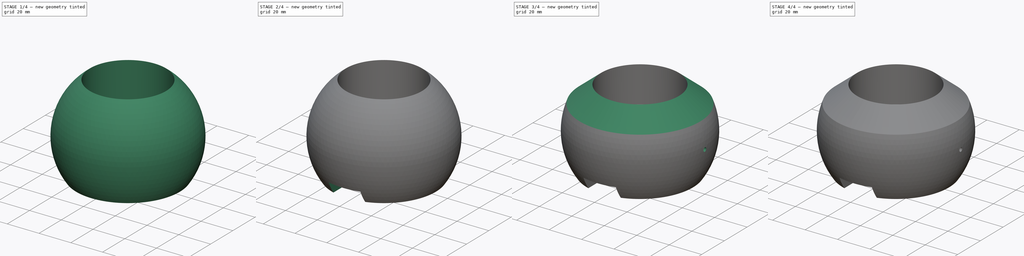
[diagram: build sequence overview — one tinted view per stage of 4, left to right]
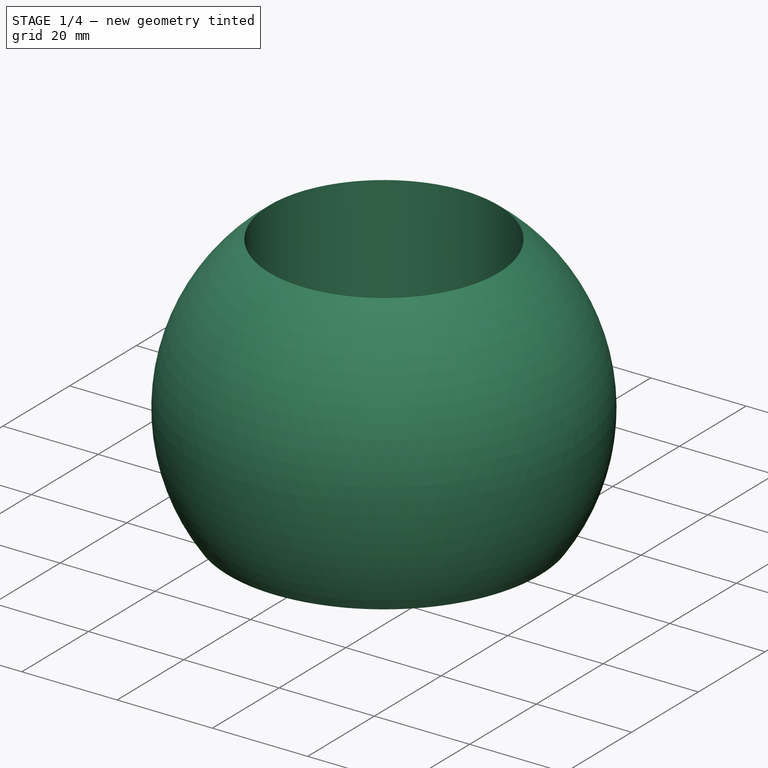
[diagram: stage 1 of 4 — iso view after this stage's code; geometry added in this stage tinted green]
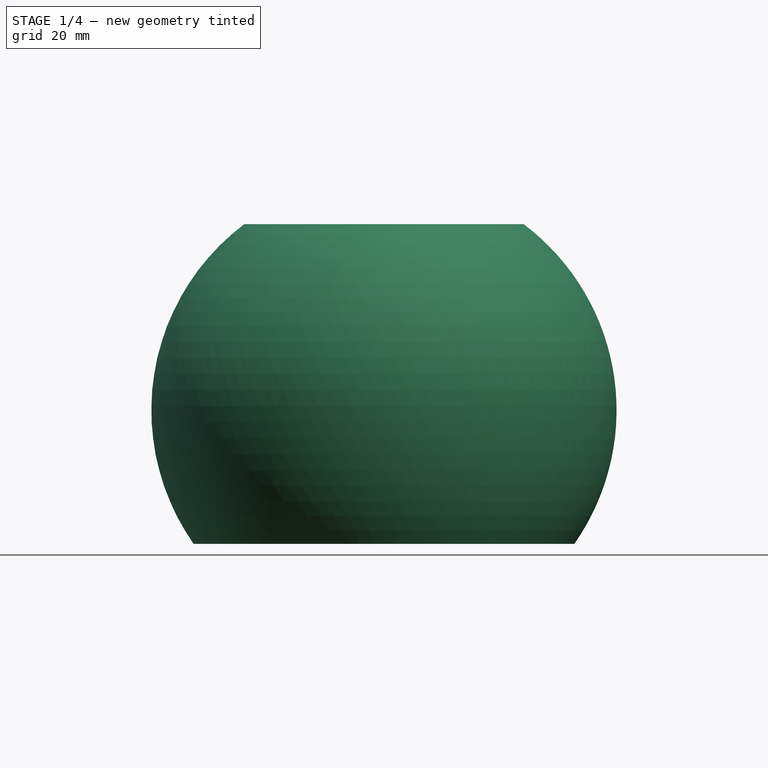
[diagram: stage 1 of 4 — front view after this stage's code; geometry added in this stage tinted green]
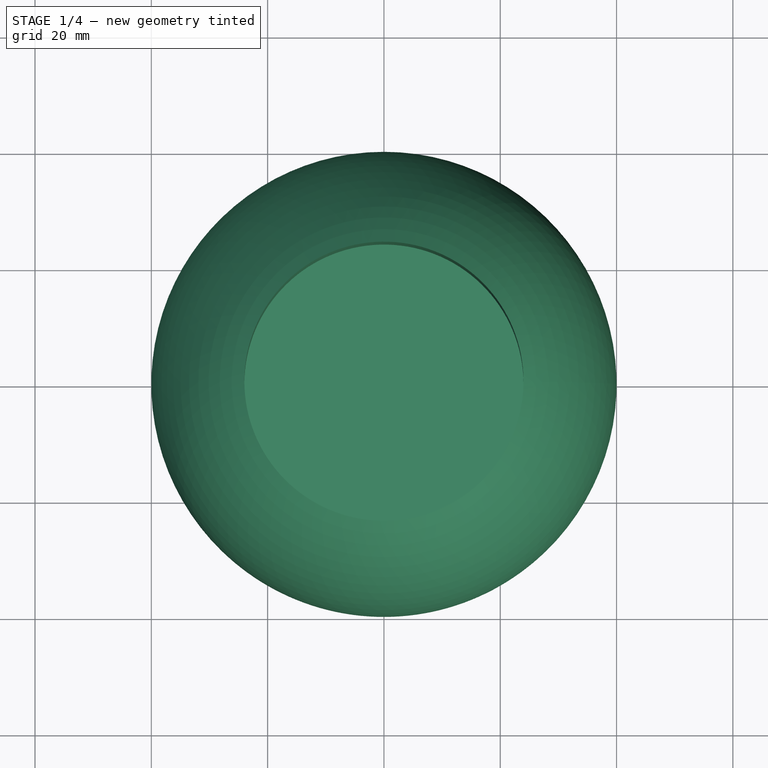
[diagram: stage 1 of 4 — top view after this stage's code; geometry added in this stage tinted green]
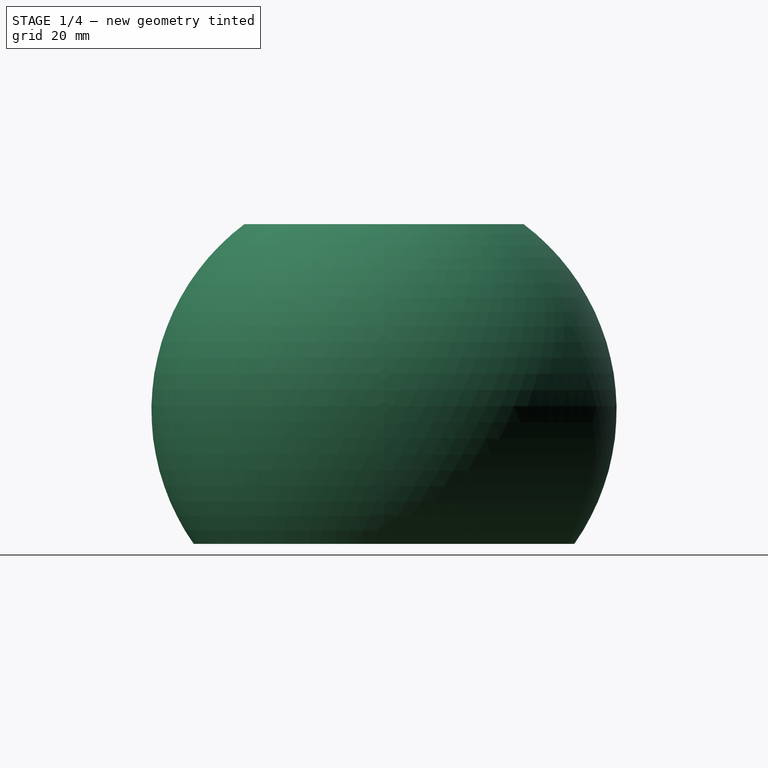
[diagram: stage 1 of 4 — right view after this stage's code; geometry added in this stage tinted green]
FCSTD DOCUMENT  (FreeCAD 1.0R39319 (Git))
Label: IMX296-MPI_Eyeball_2p8mm
License: All rights reserved
LicenseURL: https://en.wikipedia.org/wiki/All_rights_reserved
objects: Sketcher::SketchObject×11, PartDesign::Pocket×9, PartDesign::Revolution×1, PartDesign::Groove×1, PartDesign::PolarPattern×1, PartDesign::Mirrored×1, PartDesign::Body×1, App::Part×1
note: 60 computed .brp shape members not serialized (recipe doc carries the construction recipe); baked Part::Feature solids carry a one-line shape summary decoded from their .brp

FEATURE [Sketcher::SketchObject] Sketch
  ArcFitTolerance = 1e-06
  AttachmentSupport = -> [XZ_Plane001]
  FullyConstrained = true
  MakeInternals = false
  MapMode = 5
  Placement = pos=(0,0,0) rot=(1,0,0;1.5708rad)
  sketch-geometry (4):
    g0: LineSegment StartX=0 StartY=-23 StartZ=0 EndX=0 EndY=34 EndZ=0
    g1: LineSegment StartX=0 StartY=34 StartZ=0 EndX=21.0713 EndY=34 EndZ=0
    g2: ArcOfCircle CenterX=0 CenterY=0 CenterZ=0 NormalX=0 NormalY=0 NormalZ=1 AngleXU=0 Radius=40 StartAngle=5.67058 EndAngle=7.29917
    g3: LineSegment StartX=32.7261 StartY=-23 StartZ=0 EndX=0 EndY=-23 EndZ=0
  constraints (12):
    c: PointOnObject(g0,g-2)
    c: Vertical(g0)
    c: Coincident(g0,g1)
    c: Horizontal(g1)
    c: Coincident(g2,g3)
    c: Coincident(g3,g0)
    c: Horizontal(g3)
    c: Distance(g-1,g3) = 23
    c: Distance(g1,g-1) = 34
    c: Coincident(g1,g2)
    c: Coincident(g2,g-1)
    c: Radius(g2) = 40
FEATURE [PartDesign::Revolution] Revolution
  Angle = 360
  Angle2 = 60
  Axis = (0,2e-16,1)
  Base = (0,0,0)
  Placement = pos=(0,0,0) rot=(1,0,0;1.5708rad)
  Profile = -> Sketch
  ReferenceAxis = -> Sketch [V_Axis]
  Refine = true
  Reversed = true
  Suppressed = false
  Type = 0
FEATURE [Sketcher::SketchObject] Sketch001
  ArcFitTolerance = 1e-06
  AttachmentSupport = -> [Revolution]
  FullyConstrained = true
  MakeInternals = false
  MapMode = 5
  Placement = pos=(0,-1.01e-14,-23) rot=(1,0,0;3.14159rad)
  sketch-geometry (4):
    g0: LineSegment StartX=-20.5 StartY=20.5 StartZ=0 EndX=-20.5 EndY=-20.5 EndZ=0
    g1: LineSegment StartX=-20.5 StartY=-20.5 StartZ=0 EndX=20.5 EndY=-20.5 EndZ=0
    g2: LineSegment StartX=20.5 StartY=-20.5 StartZ=0 EndX=20.5 EndY=20.5 EndZ=0
    g3: LineSegment StartX=20.5 StartY=20.5 StartZ=0 EndX=-20.5 EndY=20.5 EndZ=0
  constraints (10):
    c: Coincident(g0,g1)
    c: Coincident(g1,g2)
    c: Coincident(g2,g3)
    c: Coincident(g3,g0)
    c: Vertical(g2)
    c: Horizontal(g1)
    c: Distance(g0,g0) = 41
    c: Distance(g2,g0) = 41
    c: Symmetric(g0,g0,g-1)
    c: Symmetric(g0,g2,g-2)
FEATURE [PartDesign::Pocket] Pocket
  BaseFeature = -> Revolution
  Direction = (0,0,1)
  Length = 0
  Length2 = 5
  Offset = -5.5
  Placement = pos=(0,0,0) rot=(1,0,0;1.5708rad)
  Profile = -> Sketch001
  ReferenceAxis = -> Sketch001 [N_Axis]
  Refine = true
  Suppressed = false
  Type = 3
  UpToFace = -> XY_Plane001
FEATURE [Sketcher::SketchObject] Sketch002
  ArcFitTolerance = 1e-06
  AttachmentSupport = -> [Pocket]
  FullyConstrained = true
  MakeInternals = false
  MapMode = 5
  Placement = pos=(0,1.5e-14,34) rot=(0,0,1;3.14159rad)
  sketch-geometry (1):
    g0: Circle CenterX=0 CenterY=0 CenterZ=0 NormalX=0 NormalY=0 NormalZ=1 AngleXU=0 Radius=24
  constraints (2):
    c: Coincident(g0,g-1)
    c: Diameter(g0) = 48
FEATURE [PartDesign::Pocket] Pocket001
  BaseFeature = -> Pocket
  Direction = (0,0,-1)
  Length = 0
  Length2 = 5
  Offset = -3.3
  Placement = pos=(0,0,0) rot=(1,0,0;1.5708rad)
  Profile = -> Sketch002
  ReferenceAxis = -> Sketch002 [N_Axis]
  Refine = true
  Suppressed = false
  Type = 3
  UpToFace = -> XY_Plane001
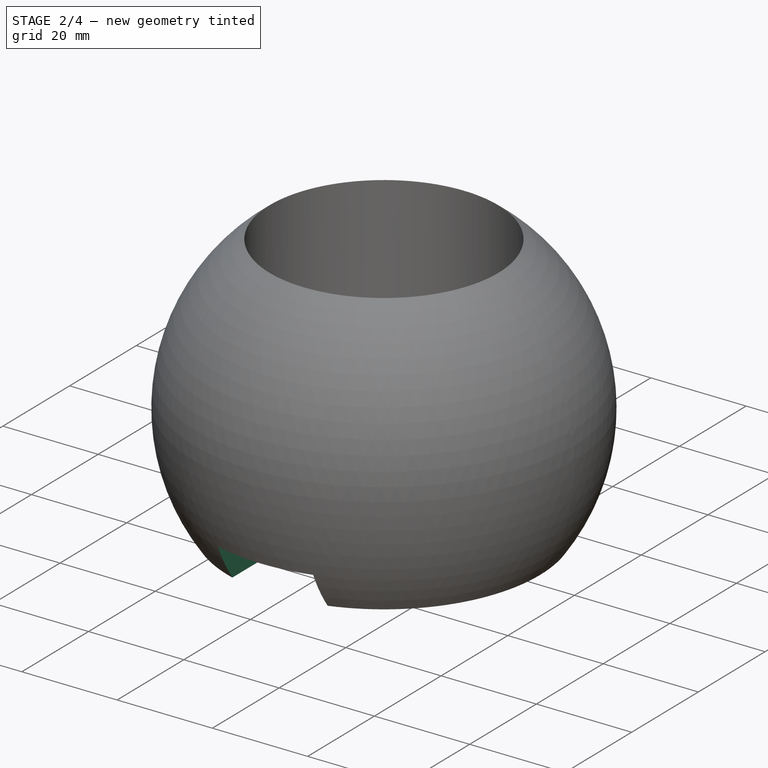
[diagram: stage 2 of 4 — iso view after this stage's code; geometry added in this stage tinted green]
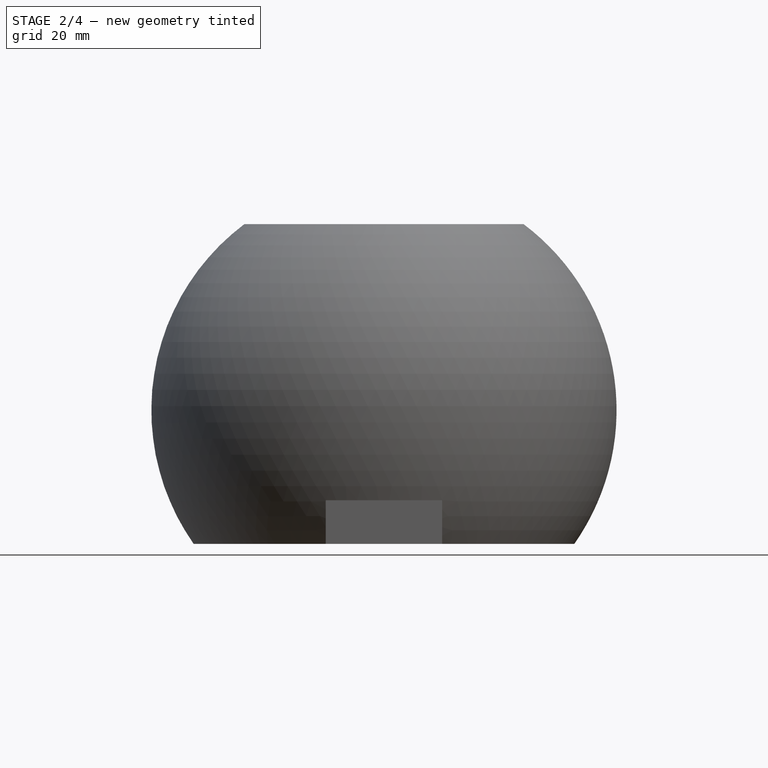
[diagram: stage 2 of 4 — front view after this stage's code; geometry added in this stage tinted green]
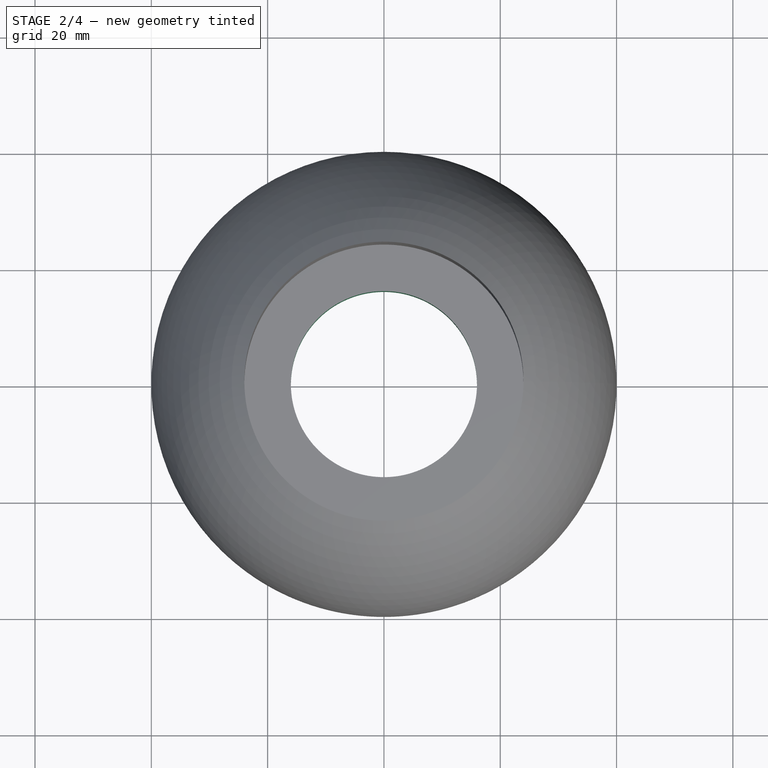
[diagram: stage 2 of 4 — top view after this stage's code; geometry added in this stage tinted green]
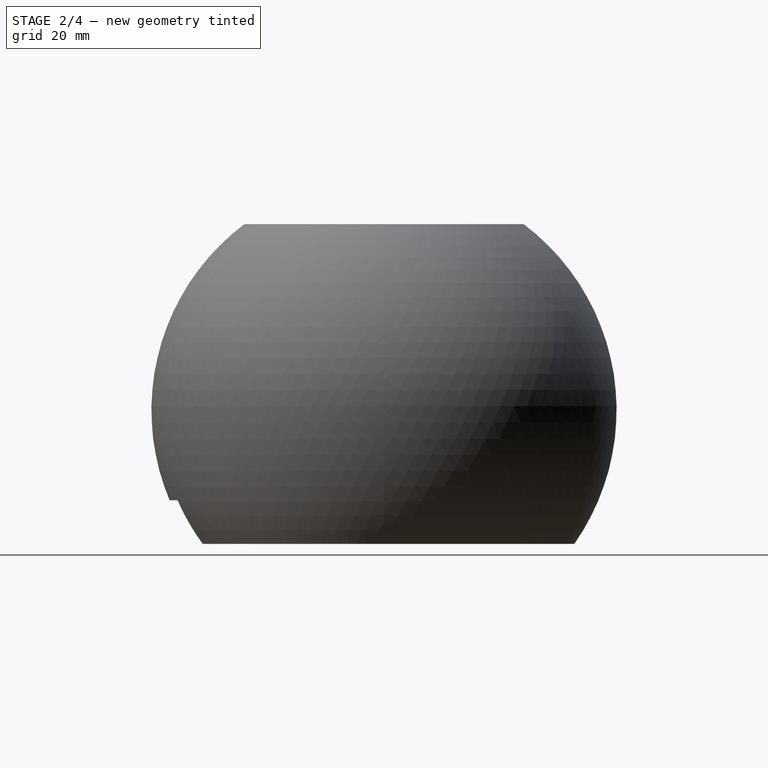
[diagram: stage 2 of 4 — right view after this stage's code; geometry added in this stage tinted green]
FEATURE [Sketcher::SketchObject] Sketch003
  ArcFitTolerance = 1e-06
  AttachmentSupport = -> [Pocket001]
  FullyConstrained = true
  MakeInternals = false
  MapMode = 5
  Placement = pos=(0,-1.01e-14,-23) rot=(1,0,0;3.14159rad)
  sketch-geometry (1):
    g0: Circle CenterX=0 CenterY=0 CenterZ=0 NormalX=0 NormalY=0 NormalZ=1 AngleXU=0 Radius=16
  constraints (2):
    c: Coincident(g0,g-1)
    c: Diameter(g0) = 32
FEATURE [PartDesign::Pocket] Pocket002
  BaseFeature = -> Pocket001
  Direction = (0,0,1)
  Length = 5
  Length2 = 5
  Placement = pos=(0,0,0) rot=(1,0,0;1.5708rad)
  Profile = -> Sketch003
  ReferenceAxis = -> Sketch003 [N_Axis]
  Refine = true
  Suppressed = false
  Type = 1
FEATURE [Sketcher::SketchObject] Sketch004
  ArcFitTolerance = 1e-06
  AttachmentSupport = -> [Pocket002]
  ExternalGeometry = -> [Pocket002]
  FullyConstrained = true
  MakeInternals = false
  MapMode = 5
  Placement = pos=(0,-1.01e-14,-23) rot=(1,0,0;3.14159rad)
  sketch-geometry (4):
    g0: LineSegment StartX=-10 StartY=35.5 StartZ=0 EndX=-10 EndY=20.5 EndZ=0
    g1: LineSegment StartX=-10 StartY=20.5 StartZ=0 EndX=10 EndY=20.5 EndZ=0
    g2: LineSegment StartX=10 StartY=20.5 StartZ=0 EndX=10 EndY=35.5 EndZ=0
    g3: LineSegment StartX=10 StartY=35.5 StartZ=0 EndX=-10 EndY=35.5 EndZ=0
  constraints (11):
    c: Coincident(g0,g1)
    c: Coincident(g1,g2)
    c: Coincident(g2,g3)
    c: Coincident(g3,g0)
    c: Vertical(g0)
    c: Vertical(g2)
    c: Horizontal(g1)
    c: Distance(g2,g0) = 20
    c: Distance(g1,g3) = 15
    c: PointOnObject(g0,g-3)
    c: Symmetric(g0,g2,g-2)
FEATURE [PartDesign::Pocket] Pocket003
  BaseFeature = -> Pocket002
  Direction = (0,0,1)
  Length = 0
  Length2 = 5
  Placement = pos=(0,0,0) rot=(1,0,0;1.5708rad)
  Profile = -> Sketch004
  ReferenceAxis = -> Sketch004 [N_Axis]
  Refine = true
  Suppressed = false
  Type = 3
  UpToFace = -> Pocket002 [Face10]
FEATURE [Sketcher::SketchObject] Sketch005
  ArcFitTolerance = 1e-06
  AttachmentSupport = -> [Pocket003]
  ExternalGeometry = -> [Pocket003]
  FullyConstrained = true
  MakeInternals = false
  MapMode = 5
  Placement = pos=(0,-35.5,0) rot=(-1,0,0;1.5708rad)
  sketch-geometry (4):
    g0: LineSegment StartX=-10 StartY=15.4839 StartZ=0 EndX=10 EndY=15.4839 EndZ=0
    g1: LineSegment StartX=10 StartY=15.4839 StartZ=0 EndX=10 EndY=18.4323 EndZ=0
    g2: LineSegment StartX=10 StartY=18.4323 StartZ=0 EndX=-10 EndY=18.4323 EndZ=0
    g3: LineSegment StartX=-10 StartY=18.4323 StartZ=0 EndX=-10 EndY=15.4839 EndZ=0
  constraints (10):
    c: Coincident(g0,g1)
    c: Coincident(g1,g2)
    c: Coincident(g2,g3)
    c: Coincident(g3,g0)
    c: Horizontal(g2)
    c: Vertical(g1)
    c: Vertical(g3)
    c: Coincident(g0,g-5)
    c: Coincident(g0,g-5)
    c: Tangent(g-5,g2)
FEATURE [PartDesign::Pocket] Pocket004
  BaseFeature = -> Pocket003
  Direction = (0,-1,-2e-16)
  Length = 5
  Length2 = 5
  Placement = pos=(0,0,0) rot=(1,0,0;1.5708rad)
  Profile = -> Sketch005
  ReferenceAxis = -> Sketch005 [N_Axis]
  Refine = true
  Suppressed = false
  Type = 1
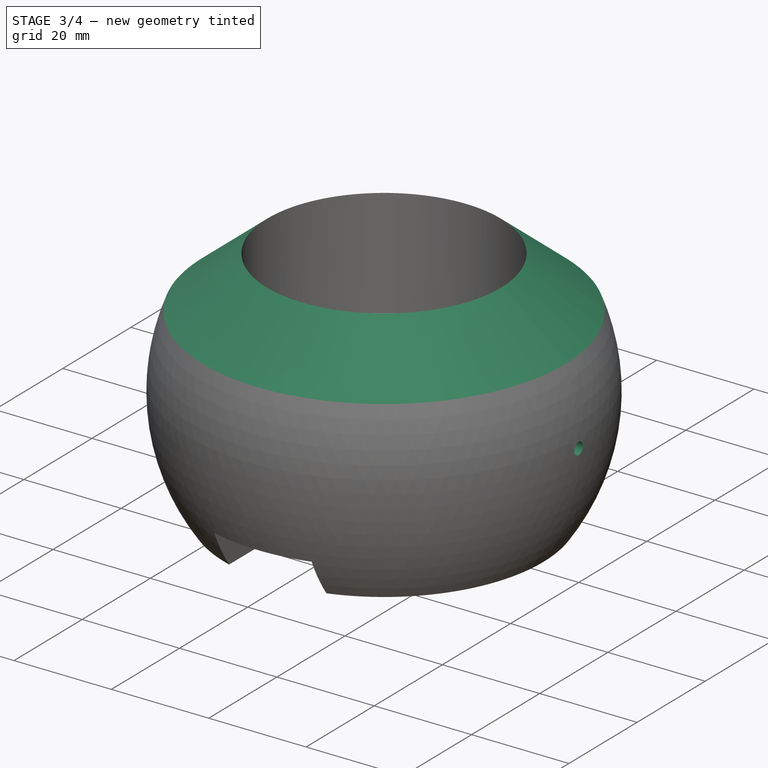
[diagram: stage 3 of 4 — iso view after this stage's code; geometry added in this stage tinted green]
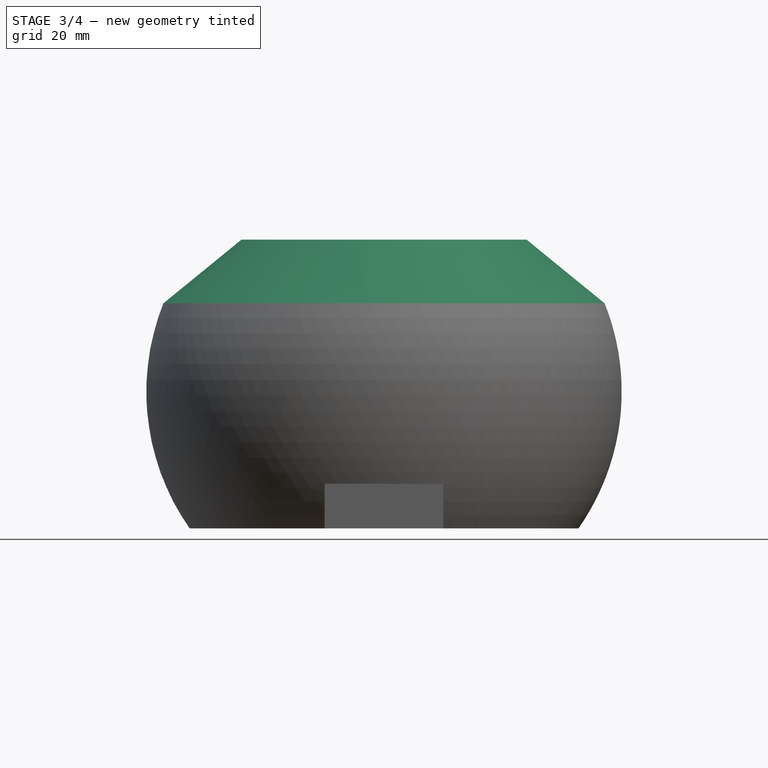
[diagram: stage 3 of 4 — front view after this stage's code; geometry added in this stage tinted green]
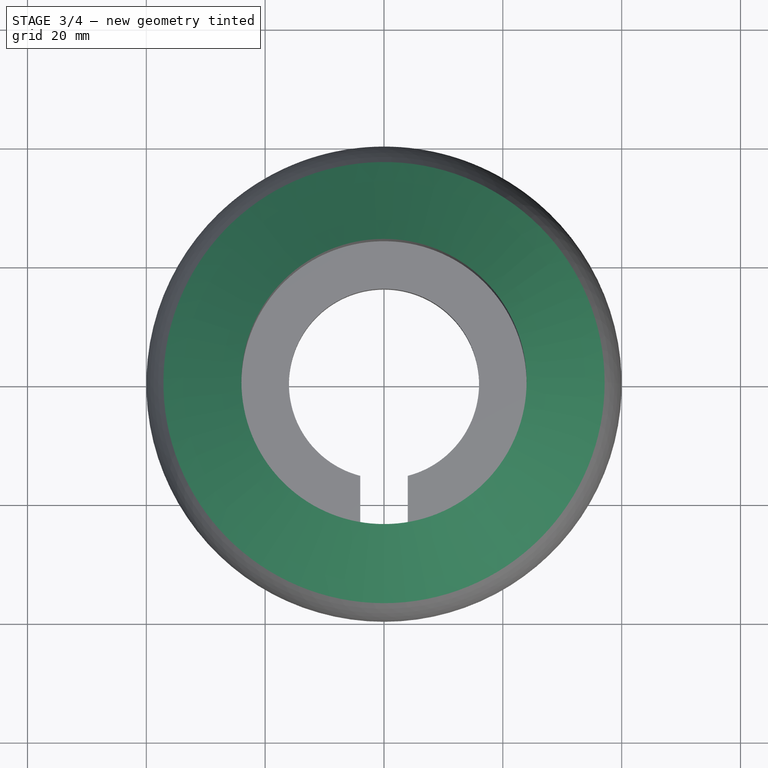
[diagram: stage 3 of 4 — top view after this stage's code; geometry added in this stage tinted green]
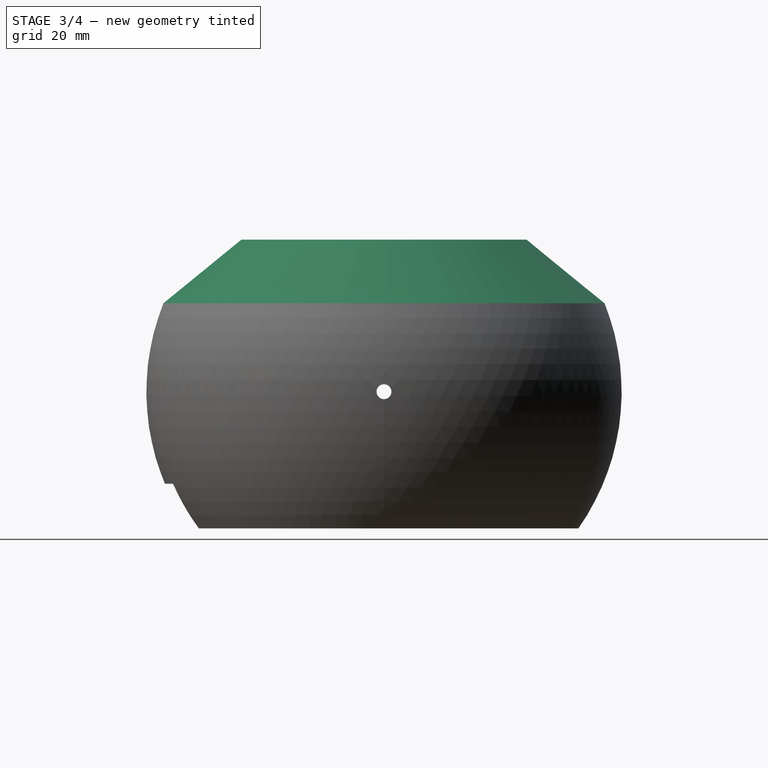
[diagram: stage 3 of 4 — right view after this stage's code; geometry added in this stage tinted green]
FEATURE [Sketcher::SketchObject] Sketch006
  ArcFitTolerance = 1e-06
  AttachmentSupport = -> [Pocket004]
  FullyConstrained = true
  MakeInternals = false
  MapMode = 5
  Placement = pos=(0,-1.01e-14,-23) rot=(1,0,0;3.14159rad)
  sketch-geometry (4):
    g0: LineSegment StartX=-4 StartY=0 StartZ=0 EndX=-4 EndY=23.6643 EndZ=0
    g1: ArcOfCircle CenterX=0 CenterY=0 CenterZ=0 NormalX=0 NormalY=0 NormalZ=1 AngleXU=0 Radius=24 StartAngle=1.40335 EndAngle=1.73824
    g2: LineSegment StartX=4 StartY=23.6643 StartZ=0 EndX=4 EndY=0 EndZ=0
    g3: LineSegment StartX=4 StartY=0 StartZ=0 EndX=-4 EndY=0 EndZ=0
  constraints (11):
    c: Coincident(g1,g0)
    c: Coincident(g1,g2)
    c: Coincident(g2,g3)
    c: Coincident(g3,g0)
    c: Coincident(g1,g-1)
    c: Horizontal(g3)
    c: Parallel(g0,g2)
    c: Vertical(g0)
    c: Distance(g0,g2) = 8
    c: Radius(g1) = 24
    c: Symmetric(g0,g2,g1)
FEATURE [PartDesign::Pocket] Pocket005
  BaseFeature = -> Pocket004
  Direction = (0,0,1)
  Length = 5
  Length2 = 5
  Placement = pos=(0,0,0) rot=(1,0,0;1.5708rad)
  Profile = -> Sketch006
  ReferenceAxis = -> Sketch006 [N_Axis]
  Refine = true
  Suppressed = false
  Type = 1
FEATURE [Sketcher::SketchObject] Sketch007
  ArcFitTolerance = 1e-06
  AttachmentSupport = -> [YZ_Plane001]
  FullyConstrained = true
  MakeInternals = false
  MapMode = 5
  Placement = pos=(0,0,0) rot=(0.57735,0.57735,0.57735;2.0944rad)
  sketch-geometry (1):
    g0: Circle CenterX=0 CenterY=0 CenterZ=0 NormalX=0 NormalY=0 NormalZ=1 AngleXU=0 Radius=1.25
  constraints (2):
    c: Coincident(g0,g-1)
    c: Diameter(g0) = 2.5
FEATURE [PartDesign::Pocket] Pocket006
  BaseFeature = -> Pocket005
  Direction = (-1,0,0)
  Length = 5
  Length2 = 5
  Midplane = true
  Placement = pos=(0,0,0) rot=(1,0,0;1.5708rad)
  Profile = -> Sketch007
  ReferenceAxis = -> Sketch007 [N_Axis]
  Refine = true
  Suppressed = false
  Type = 1
FEATURE [Sketcher::SketchObject] Sketch008
  ArcFitTolerance = 1e-06
  AttachmentSupport = -> [YZ_Plane001]
  FullyConstrained = true
  MakeInternals = false
  MapMode = 5
  Placement = pos=(0,0,0) rot=(0.57735,0.57735,0.57735;2.0944rad)
  sketch-geometry (3):
    g0: LineSegment StartX=-40 StartY=45.1645 StartZ=0 EndX=-40 EndY=12.5413 EndZ=0
    g1: LineSegment StartX=-40 StartY=12.5413 StartZ=0 EndX=0 EndY=45.1645 EndZ=0
    g2: LineSegment StartX=0 StartY=45.1645 StartZ=0 EndX=-40 EndY=45.1645 EndZ=0
  constraints (9):
    c: Vertical(g0)
    c: Coincident(g0,g1)
    c: Coincident(g1,g2)
    c: Coincident(g2,g0)
    c: Horizontal(g2)
    c: Distance(g-1,g1) = 35
    c: Angle(g2,g1) = 0.684169
    c: Distance(g-2,g0) = 40
    c: PointOnObject(g1,g-2)
FEATURE [PartDesign::Groove] Groove
  Angle = 360
  Angle2 = 60
  Axis = (0,0,1)
  Base = (0,0,0)
  BaseFeature = -> Pocket006
  Placement = pos=(0,0,0) rot=(1,0,0;1.5708rad)
  Profile = -> Sketch008
  ReferenceAxis = -> Sketch008 [V_Axis]
  Refine = true
  Reversed = true
  Suppressed = false
  Type = 0
FEATURE [Sketcher::SketchObject] Sketch009
  ArcFitTolerance = 1e-06
  AttachmentSupport = -> [Groove]
  FullyConstrained = true
  MakeInternals = false
  MapMode = 5
  Placement = pos=(0,1.2e-15,-5.5) rot=(1,0,0;3.14159rad)
  sketch-geometry (1):
    g0: Circle CenterX=17 CenterY=17 CenterZ=0 NormalX=0 NormalY=0 NormalZ=1 AngleXU=0 Radius=1
  constraints (3):
    c: Diameter(g0) = 2
    c: Distance(g0,g-1) = 17
    c: Distance(g0,g-2) = 17
FEATURE [PartDesign::Pocket] Pocket007
  BaseFeature = -> Groove
  Direction = (0,0,1)
  Length = 7
  Length2 = 5
  Placement = pos=(0,0,0) rot=(1,0,0;1.5708rad)
  Profile = -> Sketch009
  ReferenceAxis = -> Sketch009 [N_Axis]
  Refine = true
  Suppressed = false
  Type = 0
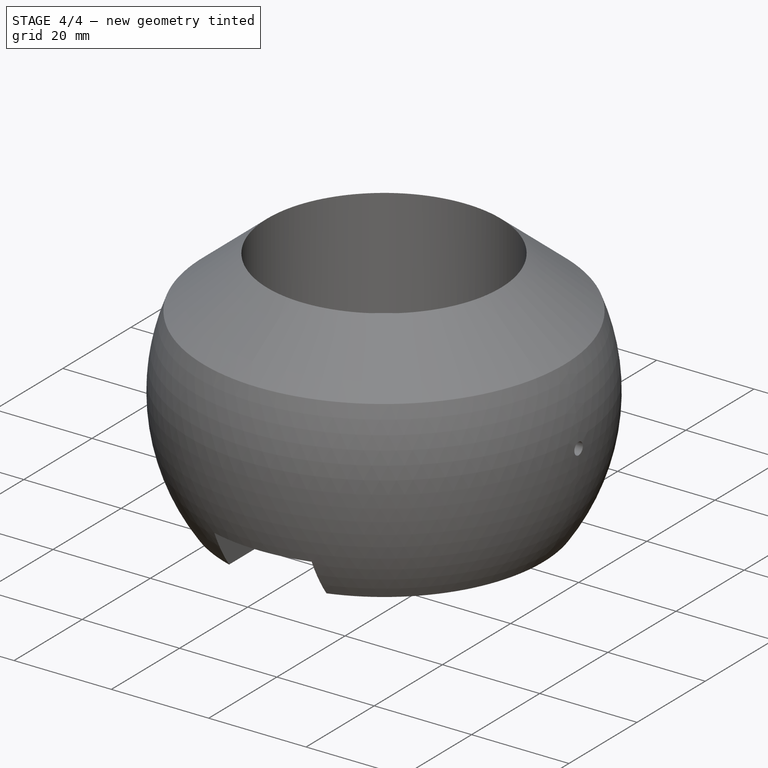
[diagram: stage 4 of 4 — iso view after this stage's code; geometry added in this stage tinted green]
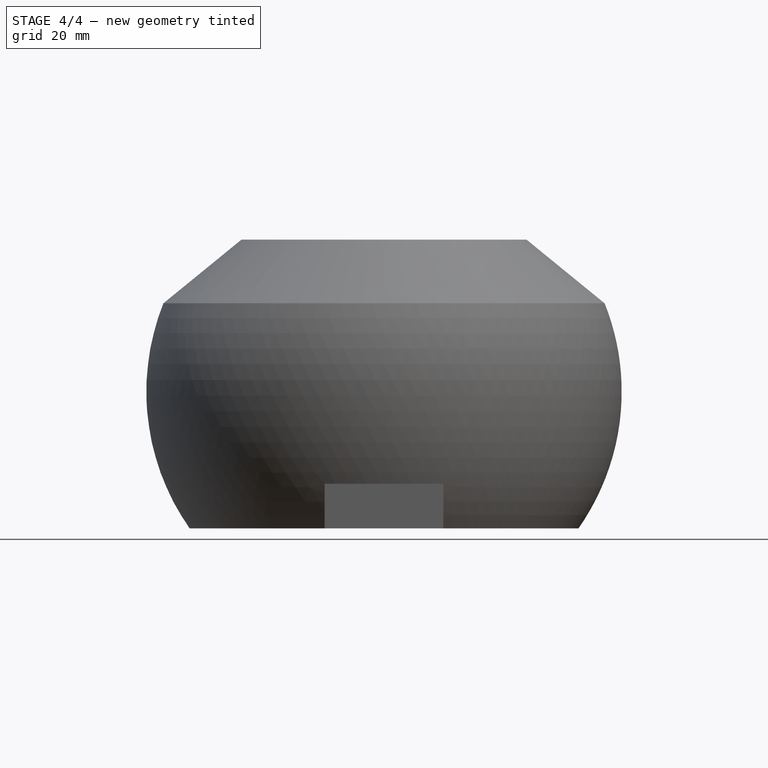
[diagram: stage 4 of 4 — front view after this stage's code; geometry added in this stage tinted green]
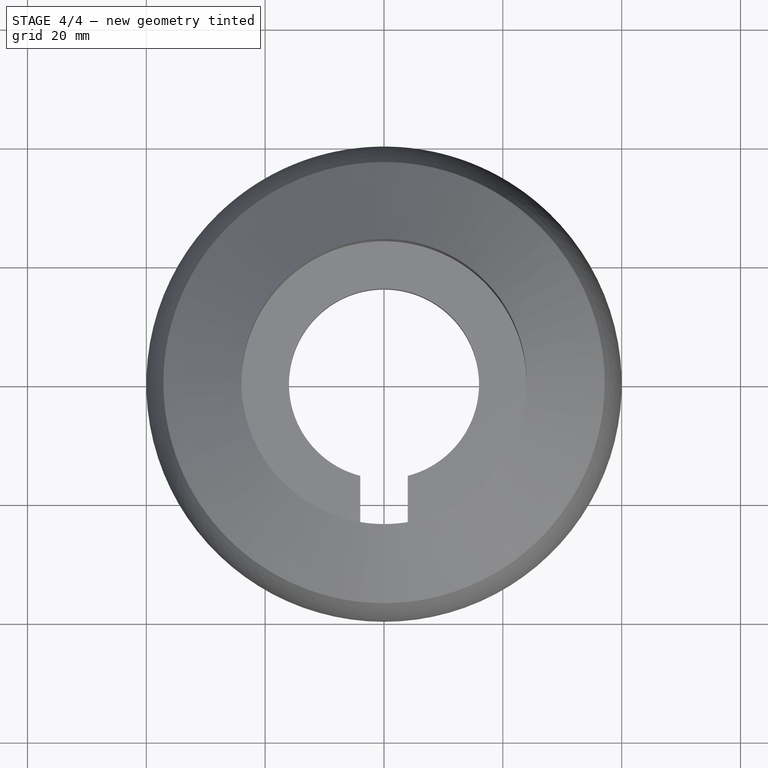
[diagram: stage 4 of 4 — top view after this stage's code; geometry added in this stage tinted green]
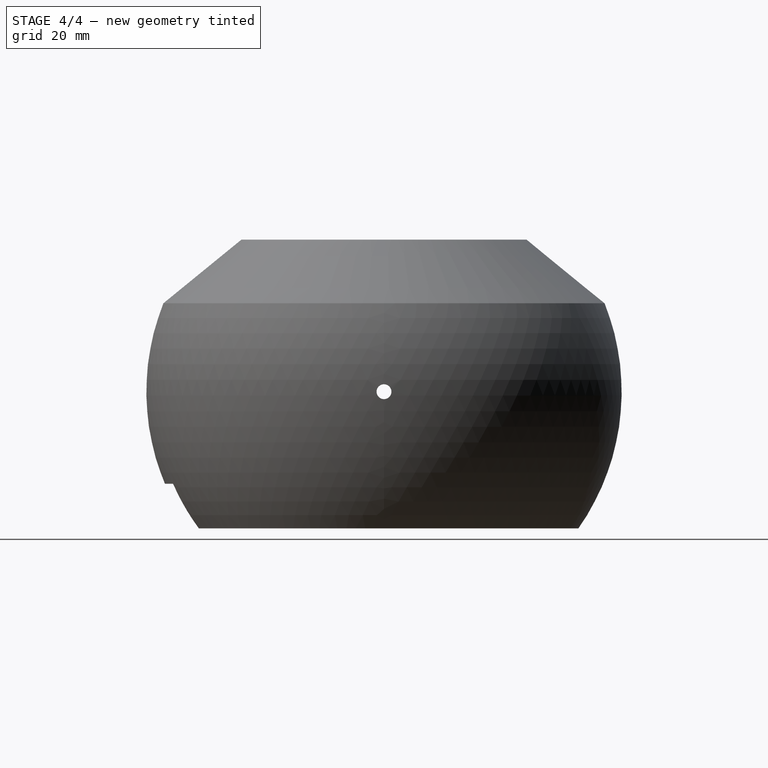
[diagram: stage 4 of 4 — right view after this stage's code; geometry added in this stage tinted green]
FEATURE [PartDesign::PolarPattern] PolarPattern
  Angle = 360
  Axis = -> Sketch009 [N_Axis]
  BaseFeature = -> Pocket007
  Mode = 0
  Occurrences = 4
  Offset = 120
  Originals = -> [Pocket007]
  Placement = pos=(0,0,0) rot=(1,0,0;1.5708rad)
  Refine = true
  Suppressed = false
  TransformMode = 0
FEATURE [Sketcher::SketchObject] Sketch010
  ArcFitTolerance = 1e-06
  AttachmentSupport = -> [PolarPattern]
  ExternalGeometry = -> [PolarPattern]
  FullyConstrained = true
  MakeInternals = false
  MapMode = 5
  Placement = pos=(0,1.2e-15,-5.5) rot=(1,0,0;3.14159rad)
  sketch-geometry (5):
    g0: LineSegment StartX=10.8 StartY=-13.5 StartZ=0 EndX=10.8 EndY=-20.5 EndZ=0
    g1: LineSegment StartX=10.8 StartY=-20.5 StartZ=0 EndX=14.8 EndY=-20.5 EndZ=0
    g2: LineSegment StartX=14.8 StartY=-20.5 StartZ=0 EndX=14.8 EndY=-13.5 EndZ=0
    g3: LineSegment StartX=14.8 StartY=-13.5 StartZ=0 EndX=10.8 EndY=-13.5 EndZ=0
    g4: LineSegment [constr] StartX=12.8 StartY=-13.5 StartZ=0 EndX=12.8 EndY=-20.5 EndZ=0
  constraints (14):
    c: Coincident(g0,g1)
    c: Coincident(g1,g2)
    c: Coincident(g2,g3)
    c: Coincident(g3,g0)
    c: Vertical(g0)
    c: Vertical(g2)
    c: Horizontal(g1)
    c: Horizontal(g3)
    c: PointOnObject(g1,g-3)
    c: Symmetric(g3,g3,g4)
    c: Symmetric(g1,g1,g4)
    c: Distance(g-4,g4) = 4.2
    c: Distance(g2,g0) = 4
    c: Distance(g4,g1) = 7
FEATURE [PartDesign::Pocket] Pocket008
  BaseFeature = -> PolarPattern
  Direction = (0,0,1)
  Length = 3
  Length2 = 5
  Placement = pos=(0,0,0) rot=(1,0,0;1.5708rad)
  Profile = -> Sketch010
  ReferenceAxis = -> Sketch010 [N_Axis]
  Refine = true
  Suppressed = false
  Type = 0
FEATURE [PartDesign::Mirrored] Mirrored
  BaseFeature = -> Pocket008
  MirrorPlane = -> Sketch010 [V_Axis]
  Originals = -> [Pocket008]
  Placement = pos=(0,0,0) rot=(1,0,0;1.5708rad)
  Refine = true
  Suppressed = false
  TransformMode = 0
FEATURE [PartDesign::Body] Body  label="IMX296-MPI_Eyeball_2p8mm001"
  AllowCompound = false
  Group = -> [Sketch,Revolution,Sketch001,Pocket,Sketch002,Pocket001,Sketch003,Pocket002,Sketch004,Pocket003,Sketch005,Pocket004,Sketch006,Pocket005,Sketch007,Pocket006,Sketch008,Groove,Sketch009,Pocket007,PolarPattern,Sketch010,Pocket008,Mirrored]
  Origin = -> Origin001
  Tip = -> Mirrored
FEATURE [App::Part] Part  label="IMX296-MPI_Eyeball_2p8mm"
  Group = -> [Body]
  Origin = -> Origin
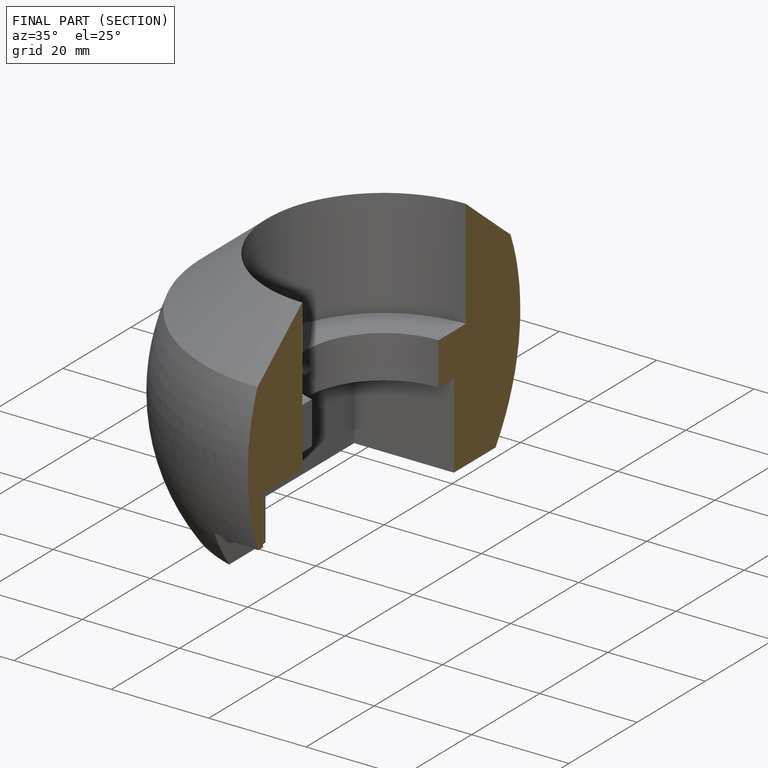
[diagram: finished part — half-section view (interior)]
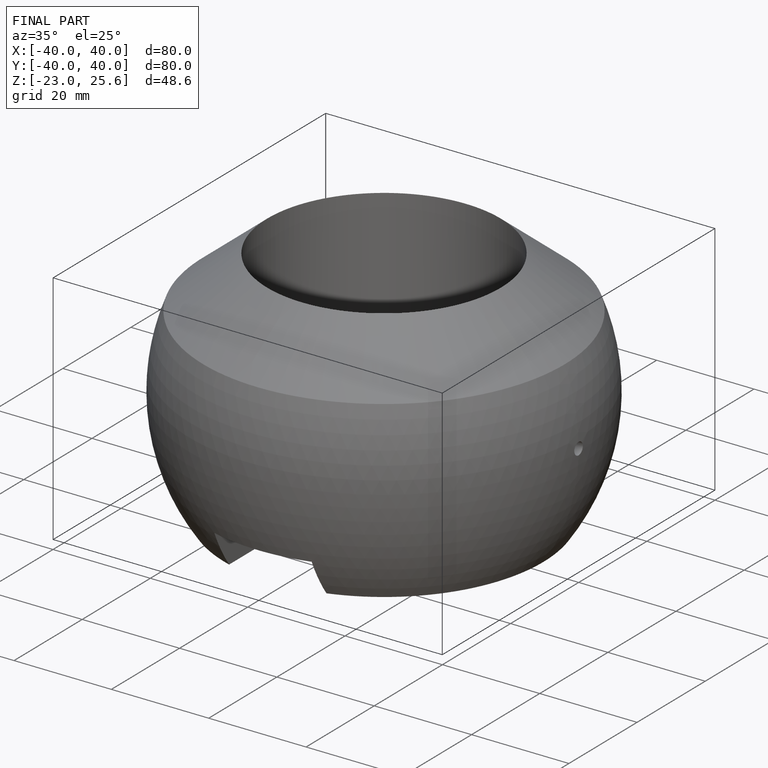
[diagram: finished part — iso view with bounding-box wireframe]
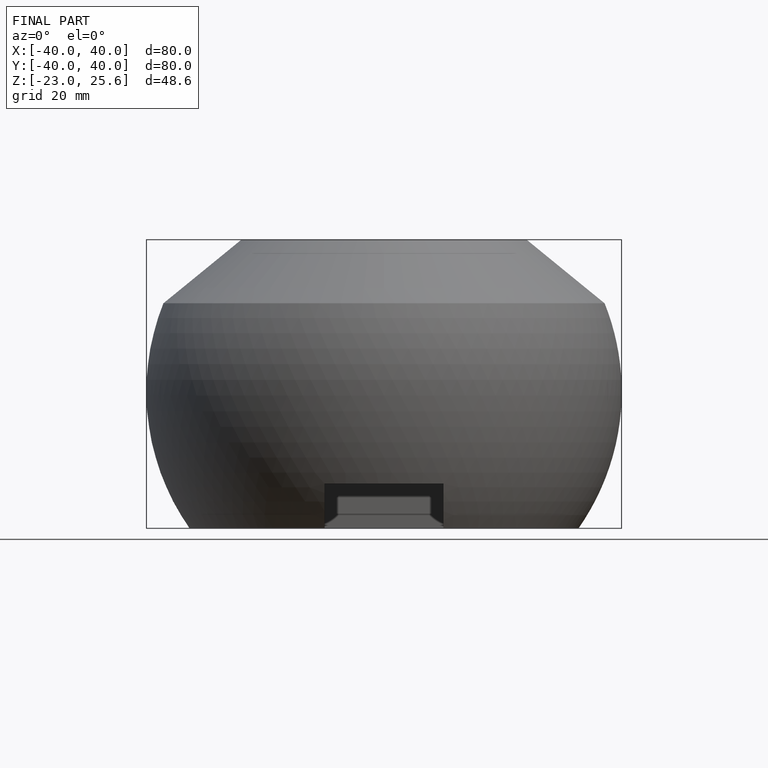
[diagram: finished part — front view with bounding-box wireframe]
